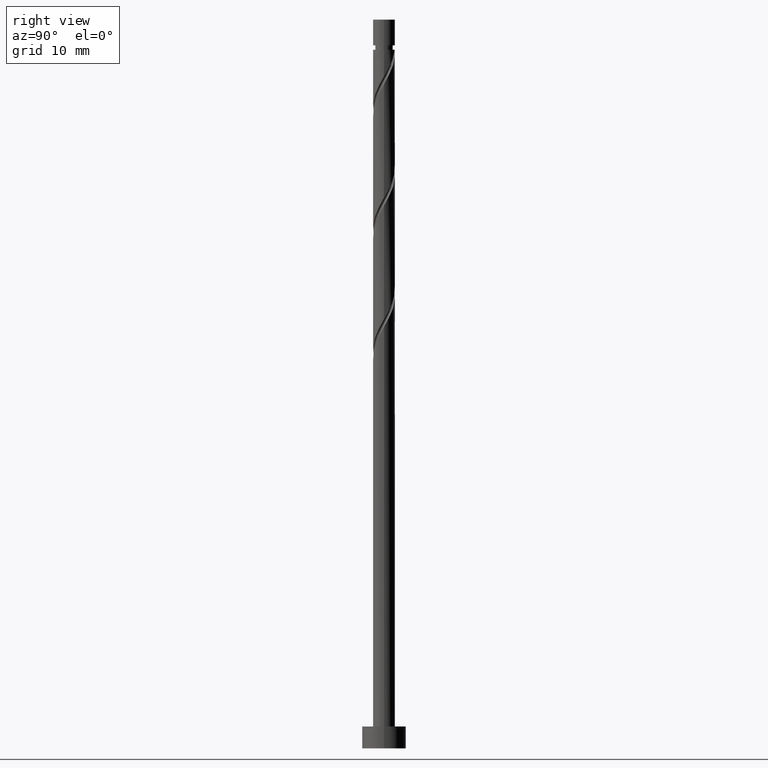
[diagram: clean part render]
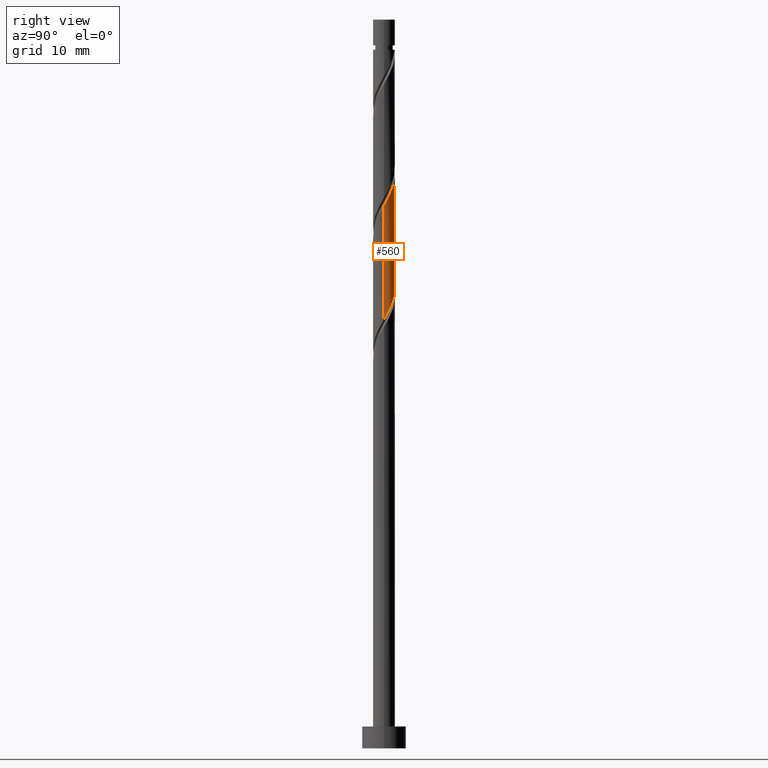
[diagram: same view with one face highlighted and labeled with its STEP entity id]
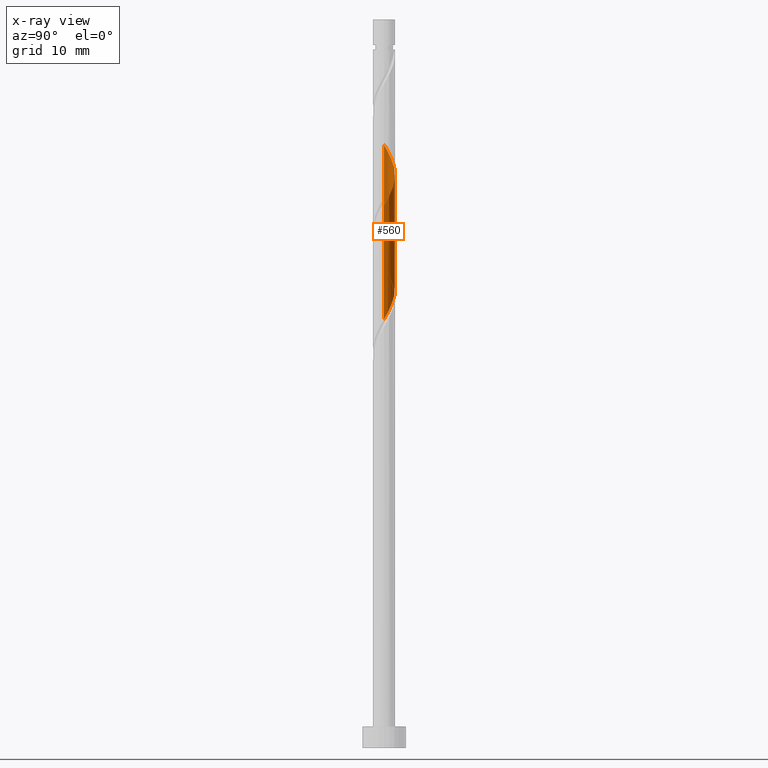
[diagram: x-ray of the same camera — body ghosted, the highlighted face saturated]
A machine part, right view. The second image highlights one B-rep face of the part: STEP entity #560.
The next image is the same camera in x-ray: the body ghosted, the highlighted face saturated — about 0% of this face is hidden behind the body in this view.
In plain terms, the highlighted cylindrical surface (edge-blend (fillet) strip) has radius 1.5 mm, axis along (-0, -0, -1).
Its self-contained STEP definition (entity closure, byte-faithful):
#11 = CARTESIAN_POINT ( 'NONE',  ( -1.499999999999999556, 0.01935251149804386242, 67.18757410495958027 ) ) ;
#16 = CARTESIAN_POINT ( 'NONE',  ( -1.500000000000000222, 0.000000000000000000, 100.0000000000000000 ) ) ;
#24 = DIRECTION ( 'NONE',  ( -0.000000000000000000, -0.000000000000000000, -1.000000000000000000 ) ) ;
#31 = CARTESIAN_POINT ( 'NONE',  ( 1.492677119472048064, 0.3031010166390168403, 75.02406992390319829 ) ) ;
#56 = CARTESIAN_POINT ( 'NONE',  ( 1.499500723504464617, 0.03869858149331611291, 74.56110696094027901 ) ) ;
#90 = CARTESIAN_POINT ( 'NONE',  ( -0.2984962311319859229, 1.470000000000002860, 79.19073659056988390 ) ) ;
#113 = ORIENTED_EDGE ( 'NONE', *, *, #128, .F. ) ;
#122 = CARTESIAN_POINT ( 'NONE',  ( -0.4838453794137441144, 1.444246813430079435, 63.91295881279211955 ) ) ;
#128 = EDGE_CURVE ( 'NONE', #1031, #1201, #250, .T. ) ;
#144 = CYLINDRICAL_SURFACE ( 'NONE', #451, 1.500000000000000222 ) ;
#157 = CARTESIAN_POINT ( 'NONE',  ( 0.7832643164158664684, 1.279256428801351264, 61.59814399797728868 ) ) ;
#162 = CARTESIAN_POINT ( 'NONE',  ( 1.500000000000000444, 0.2445815577306820199, 59.31817765792423813 ) ) ;
#166 = VERTEX_POINT ( 'NONE', #932 ) ;
#219 = VECTOR ( 'NONE', #1289, 1000.000000000000000 ) ;
#222 = CARTESIAN_POINT ( 'NONE',  ( -1.395834070351430256, 0.5492242238340916405, 66.22777362760690778 ) ) ;
#250 = LINE ( 'NONE', #16, #219 ) ;
#253 = CARTESIAN_POINT ( 'NONE',  ( 1.422305459129118432, 0.4764946809057890031, 59.74629214612544104 ) ) ;
#289 = ORIENTED_EDGE ( 'NONE', *, *, #745, .T. ) ;
#308 = CARTESIAN_POINT ( 'NONE',  ( -1.173559165389830294, 0.9342156524751292768, 81.04258844242174575 ) ) ;
#376 = CARTESIAN_POINT ( 'NONE',  ( 1.500000000000000222, 1.836970198721029934E-16, 100.0000000000000000 ) ) ;
#418 = CARTESIAN_POINT ( 'NONE',  ( 0.7162364070885985923, 1.317955010294669549, 77.33888473871803626 ) ) ;
#451 = AXIS2_PLACEMENT_3D ( 'NONE', #582, #24, #469 ) ;
#469 = DIRECTION ( 'NONE',  ( -1.000000000000000000, 0.000000000000000000, 0.000000000000000000 ) ) ;
#477 = CARTESIAN_POINT ( 'NONE',  ( 1.123809227997133453, 0.9935053190942130241, 76.41295881279208402 ) ) ;
#498 = CARTESIAN_POINT ( 'NONE',  ( 1.395834070351432699, 0.5492242238340917515, 75.48703288686618862 ) ) ;
#501 = EDGE_LOOP ( 'NONE', ( #1275, #289, #1326, #113 ) ) ;
#532 = CARTESIAN_POINT ( 'NONE',  ( 0.2222749049616024597, 1.483439876309220917, 78.26481066464397429 ) ) ;
#546 = CARTESIAN_POINT ( 'NONE',  ( -1.500000000000002887, 1.221260515208559988E-15, 82.82654836891448724 ) ) ;
#560 = ADVANCED_FACE ( 'NONE', ( #698 ), #144, .T. ) ;
#568 = EDGE_CURVE ( 'NONE', #1201, #732, #905, .T. ) ;
#582 = CARTESIAN_POINT ( 'NONE',  ( 0.000000000000000000, 0.000000000000000000, 100.0000000000000000 ) ) ;
#615 = CARTESIAN_POINT ( 'NONE',  ( 1.173559165389829406, 0.9342156524751273894, 60.67221807205136486 ) ) ;
#676 = CARTESIAN_POINT ( 'NONE',  ( -0.9486274347634494619, 1.191663207159257221, 64.83888473871803626 ) ) ;
#698 = FACE_OUTER_BOUND ( 'NONE', #501, .T. ) ;
#702 = CARTESIAN_POINT ( 'NONE',  ( -1.298991021230814225, 0.7953474310291664962, 65.76481066464396008 ) ) ;
#732 = VERTEX_POINT ( 'NONE', #843 ) ;
#745 = EDGE_CURVE ( 'NONE', #166, #732, #1072, .T. ) ;
#766 = CARTESIAN_POINT ( 'NONE',  ( -1.500000000000000666, 0.2445815577306899025, 82.39662885654882984 ) ) ;
#809 = EDGE_CURVE ( 'NONE', #166, #1031, #1178, .T. ) ;
#818 = CARTESIAN_POINT ( 'NONE',  ( -1.500000000000000000, 2.018254380485350625E-14, 67.22159147889192354 ) ) ;
#837 = VECTOR ( 'NONE', #857, 1000.000000000000000 ) ;
#843 = CARTESIAN_POINT ( 'NONE',  ( 1.500000000000000000, 9.710328255480970146E-17, 58.88825814555863758 ) ) ;
#857 = DIRECTION ( 'NONE',  ( -0.000000000000000000, -0.000000000000000000, -1.000000000000000000 ) ) ;
#873 = CARTESIAN_POINT ( 'NONE',  ( 0.4838453794137458908, 1.444246813430081433, 77.80184770168098396 ) ) ;
#881 = CARTESIAN_POINT ( 'NONE',  ( -1.008831740058302451, 1.141145796791064315, 80.57962547945878384 ) ) ;
#905 =( BOUNDED_CURVE ( )  B_SPLINE_CURVE ( 2, ( #818, #11, #1277, #1151, #222, #702, #1173, #676, #1146, #122, #1311, #1188, #1299, #941, #157, #1402, #615, #950, #253, #162, #1092 ),
 .UNSPECIFIED., .F., .T. ) 
 B_SPLINE_CURVE_WITH_KNOTS ( ( 3, 2, 2, 2, 2, 2, 2, 2, 2, 2, 3 ),
 ( 0.6795248053855297288, 0.6805555555555555802, 0.6944444444444444198, 0.7083333333333333703, 0.7222222222222222099, 0.7361111111111111605, 0.7500000000000000000, 0.7638888888888888395, 0.7777777777777777901, 0.7916666666666666297, 0.8045248053855291737 ),
 .UNSPECIFIED. ) 
 CURVE ( )  GEOMETRIC_REPRESENTATION_ITEM ( )  RATIONAL_B_SPLINE_CURVE ( ( 0.9071930855141211447, 0.9080659294509683122, 0.9090909090909077284, 0.8952797754656424134, 0.9090909090909077284, 0.8952797754656424134, 0.9090909090909077284, 0.8952797754656424134, 0.9090909090909077284, 0.8952797754656424134, 0.9090909090909077284, 0.8952797754656424134, 0.9090909090909077284, 0.8952797754656424134, 0.9090909090909077284, 0.8952797754656424134, 0.9090909090909077284, 0.8952797754656424134, 0.9090909090909077284, 0.8963047551055824957, 0.9071930855141202565 ) ) 
 REPRESENTATION_ITEM ( '' )  );
#932 = CARTESIAN_POINT ( 'NONE',  ( 1.500000000000002442, -1.079340333013069849E-15, 74.49321503558111601 ) ) ;
#941 = CARTESIAN_POINT ( 'NONE',  ( 0.5576968927734294867, 1.417367060811640878, 62.06110696094025769 ) ) ;
#950 = CARTESIAN_POINT ( 'NONE',  ( 1.338286590721356806, 0.7272855081591930171, 60.20925510908839584 ) ) ;
#965 = CARTESIAN_POINT ( 'NONE',  ( -1.500000000000000000, 2.018254380485350625E-14, 67.22159147889192354 ) ) ;
#969 = CARTESIAN_POINT ( 'NONE',  ( 1.298991021230816889, 0.7953474310291662741, 75.94999584982915053 ) ) ;
#986 = CARTESIAN_POINT ( 'NONE',  ( -0.7832643164158661353, 1.279256428801353929, 80.11666251649577930 ) ) ;
#1006 = CARTESIAN_POINT ( 'NONE',  ( -0.03929556949054227588, 1.522632939188361734, 78.72777362760690778 ) ) ;
#1031 = VERTEX_POINT ( 'NONE', #1417 ) ;
#1056 = CARTESIAN_POINT ( 'NONE',  ( 1.500000000000002442, -1.079340333013069849E-15, 74.49321503558111601 ) ) ;
#1072 = LINE ( 'NONE', #376, #837 ) ;
#1081 = CARTESIAN_POINT ( 'NONE',  ( 1.500000000000002665, 0.01935251149802478393, 74.52723240951345929 ) ) ;
#1092 = CARTESIAN_POINT ( 'NONE',  ( 1.500000000000000000, 9.710328255480970146E-17, 58.88825814555863758 ) ) ;
#1146 = CARTESIAN_POINT ( 'NONE',  ( -0.7162364070885967049, 1.317955010294668217, 64.37592177575506014 ) ) ;
#1151 = CARTESIAN_POINT ( 'NONE',  ( -1.492677119472045844, 0.3031010166390170069, 66.69073659056986969 ) ) ;
#1173 = CARTESIAN_POINT ( 'NONE',  ( -1.123809227997131899, 0.9935053190942115808, 65.30184770168098396 ) ) ;
#1178 =( BOUNDED_CURVE ( )  B_SPLINE_CURVE ( 2, ( #1056, #1081, #56, #31, #498, #969, #477, #1214, #418, #873, #532, #1006, #90, #1457, #986, #881, #308, #1444, #1345, #766, #546 ),
 .UNSPECIFIED., .F., .T. ) 
 B_SPLINE_CURVE_WITH_KNOTS ( ( 3, 2, 2, 2, 2, 2, 2, 2, 2, 2, 3 ),
 ( 0.4295248053855287296, 0.4305555555555555802, 0.4444444444444444198, 0.4583333333333333703, 0.4722222222222222099, 0.4861111111111111605, 0.5000000000000000000, 0.5138888888888888395, 0.5277777777777777901, 0.5416666666666667407, 0.5545248053855288406 ),
 .UNSPECIFIED. ) 
 CURVE ( )  GEOMETRIC_REPRESENTATION_ITEM ( )  RATIONAL_B_SPLINE_CURVE ( ( 0.9071930855141254746, 0.9080659294509734192, 0.9090909090909138346, 0.8952797754656482976, 0.9090909090909138346, 0.8952797754656482976, 0.9090909090909138346, 0.8952797754656482976, 0.9090909090909138346, 0.8952797754656482976, 0.9090909090909138346, 0.8952797754656482976, 0.9090909090909138346, 0.8952797754656482976, 0.9090909090909138346, 0.8952797754656482976, 0.9090909090909138346, 0.8952797754656482976, 0.9090909090909138346, 0.8963047551055887130, 0.9071930855141256966 ) ) 
 REPRESENTATION_ITEM ( '' )  );
#1188 = CARTESIAN_POINT ( 'NONE',  ( 0.03929556949054253956, 1.522632939188359069, 62.98703288686617441 ) ) ;
#1201 = VERTEX_POINT ( 'NONE', #965 ) ;
#1214 = CARTESIAN_POINT ( 'NONE',  ( 0.9486274347634513493, 1.191663207159258331, 76.87592177575508856 ) ) ;
#1275 = ORIENTED_EDGE ( 'NONE', *, *, #809, .F. ) ;
#1277 = CARTESIAN_POINT ( 'NONE',  ( -1.499500723504462174, 0.03869858149331632108, 67.15369955353283160 ) ) ;
#1289 = DIRECTION ( 'NONE',  ( -0.000000000000000000, -0.000000000000000000, -1.000000000000000000 ) ) ;
#1299 = CARTESIAN_POINT ( 'NONE',  ( 0.2984962311319865336, 1.470000000000000417, 62.52406992390323381 ) ) ;
#1311 = CARTESIAN_POINT ( 'NONE',  ( -0.2222749049616008221, 1.483439876309219363, 63.44999584982914342 ) ) ;
#1326 = ORIENTED_EDGE ( 'NONE', *, *, #568, .F. ) ;
#1345 = CARTESIAN_POINT ( 'NONE',  ( -1.422305459129120431, 0.4764946809057899468, 81.96851436834768379 ) ) ;
#1402 = CARTESIAN_POINT ( 'NONE',  ( 1.008831740058301785, 1.141145796791061429, 61.13518103501432677 ) ) ;
#1417 = CARTESIAN_POINT ( 'NONE',  ( -1.500000000000002887, 1.221260515208560185E-15, 82.82654836891447303 ) ) ;
#1444 = CARTESIAN_POINT ( 'NONE',  ( -1.338286590721358804, 0.7272855081591944604, 81.50555140538469345 ) ) ;
#1457 = CARTESIAN_POINT ( 'NONE',  ( -0.5576968927734301529, 1.417367060811643542, 79.65369955353284581 ) ) ;